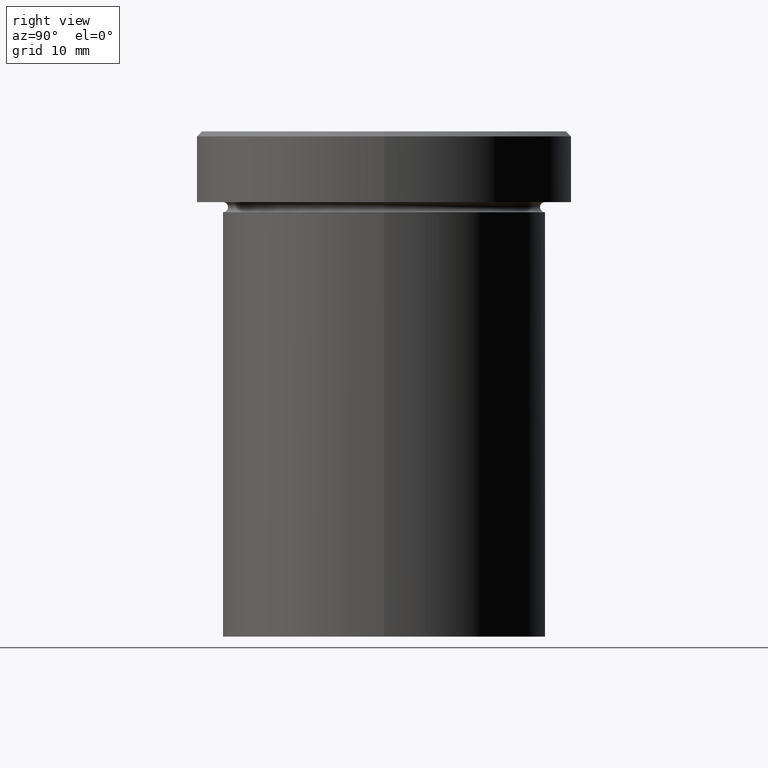
[diagram: clean part render]
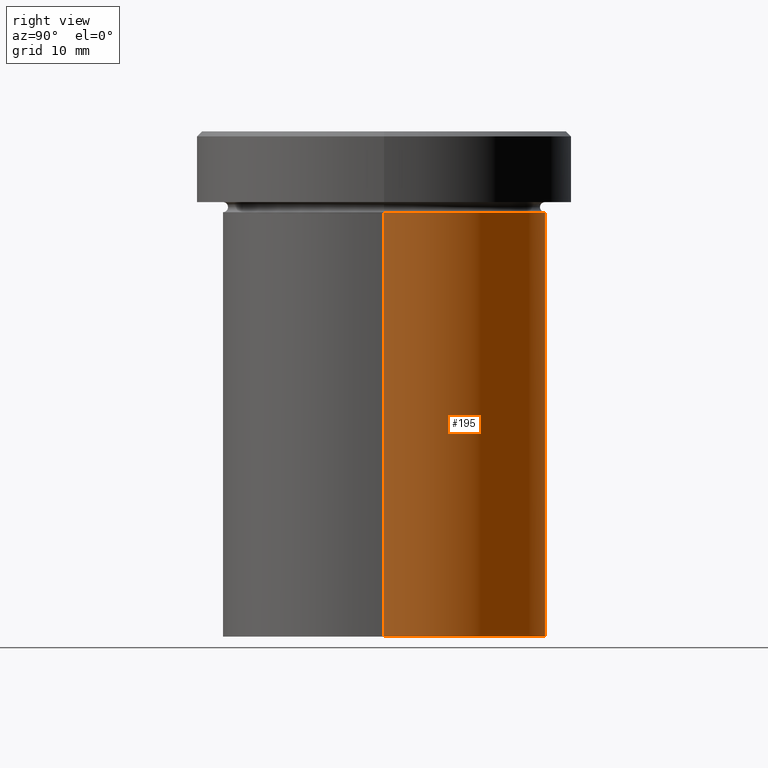
[diagram: same view with one face highlighted and labeled with its STEP entity id]
A machine part, right view. The second image highlights one B-rep face of the part: STEP entity #195.
In plain terms, the highlighted cylindrical surface (partial cylindrical patch) has radius 16 mm, axis along (-0, -0, 1).
Its self-contained STEP definition (entity closure, byte-faithful):
#22 = LINE ( 'NONE', #68, #272 ) ;
#39 = EDGE_LOOP ( 'NONE', ( #200, #76, #341, #165 ) ) ;
#50 = DIRECTION ( 'NONE',  ( -0.000000000000000000, -0.000000000000000000, 1.000000000000000000 ) ) ;
#65 = EDGE_CURVE ( 'NONE', #193, #268, #261, .T. ) ;
#68 = CARTESIAN_POINT ( 'NONE',  ( -16.00000000000000000, 1.959434878635765131E-15, 0.000000000000000000 ) ) ;
#76 = ORIENTED_EDGE ( 'NONE', *, *, #394, .T. ) ;
#94 = CARTESIAN_POINT ( 'NONE',  ( 16.00000000000000000, 0.000000000000000000, -50.00000000000000000 ) ) ;
#102 = EDGE_CURVE ( 'NONE', #268, #168, #353, .T. ) ;
#114 = CARTESIAN_POINT ( 'NONE',  ( -16.00000000000000000, 1.959434878635765131E-15, -8.000000000000000000 ) ) ;
#120 = DIRECTION ( 'NONE',  ( -0.000000000000000000, -0.000000000000000000, 1.000000000000000000 ) ) ;
#128 = CIRCLE ( 'NONE', #237, 16.00000000000000000 ) ;
#145 = DIRECTION ( 'NONE',  ( -0.000000000000000000, -0.000000000000000000, 1.000000000000000000 ) ) ;
#161 = AXIS2_PLACEMENT_3D ( 'NONE', #333, #50, #379 ) ;
#165 = ORIENTED_EDGE ( 'NONE', *, *, #65, .F. ) ;
#167 = VECTOR ( 'NONE', #177, 1000.000000000000000 ) ;
#168 = VERTEX_POINT ( 'NONE', #114 ) ;
#173 = CARTESIAN_POINT ( 'NONE',  ( -16.00000000000000000, 1.959434878635765131E-15, -50.00000000000000000 ) ) ;
#174 = CARTESIAN_POINT ( 'NONE',  ( 16.00000000000000000, 0.000000000000000000, 0.000000000000000000 ) ) ;
#177 = DIRECTION ( 'NONE',  ( -0.000000000000000000, -0.000000000000000000, 1.000000000000000000 ) ) ;
#185 = EDGE_CURVE ( 'NONE', #193, #371, #128, .T. ) ;
#187 = CYLINDRICAL_SURFACE ( 'NONE', #213, 16.00000000000000000 ) ;
#193 = VERTEX_POINT ( 'NONE', #94 ) ;
#195 = ADVANCED_FACE ( 'NONE', ( #351 ), #187, .T. ) ;
#198 = DIRECTION ( 'NONE',  ( -0.000000000000000000, -0.000000000000000000, 1.000000000000000000 ) ) ;
#200 = ORIENTED_EDGE ( 'NONE', *, *, #185, .T. ) ;
#201 = CARTESIAN_POINT ( 'NONE',  ( 16.00000000000000000, 0.000000000000000000, -8.000000000000000000 ) ) ;
#212 = DIRECTION ( 'NONE',  ( 1.000000000000000000, 0.000000000000000000, 0.000000000000000000 ) ) ;
#213 = AXIS2_PLACEMENT_3D ( 'NONE', #312, #145, #212 ) ;
#237 = AXIS2_PLACEMENT_3D ( 'NONE', #343, #120, #258 ) ;
#258 = DIRECTION ( 'NONE',  ( 1.000000000000000000, 0.000000000000000000, 0.000000000000000000 ) ) ;
#261 = LINE ( 'NONE', #174, #167 ) ;
#268 = VERTEX_POINT ( 'NONE', #201 ) ;
#272 = VECTOR ( 'NONE', #198, 1000.000000000000000 ) ;
#312 = CARTESIAN_POINT ( 'NONE',  ( 0.000000000000000000, 0.000000000000000000, 0.000000000000000000 ) ) ;
#333 = CARTESIAN_POINT ( 'NONE',  ( 0.000000000000000000, 0.000000000000000000, -8.000000000000000000 ) ) ;
#341 = ORIENTED_EDGE ( 'NONE', *, *, #102, .F. ) ;
#343 = CARTESIAN_POINT ( 'NONE',  ( 0.000000000000000000, 0.000000000000000000, -50.00000000000000000 ) ) ;
#351 = FACE_OUTER_BOUND ( 'NONE', #39, .T. ) ;
#353 = CIRCLE ( 'NONE', #161, 16.00000000000000000 ) ;
#371 = VERTEX_POINT ( 'NONE', #173 ) ;
#379 = DIRECTION ( 'NONE',  ( 1.000000000000000000, 0.000000000000000000, 0.000000000000000000 ) ) ;
#394 = EDGE_CURVE ( 'NONE', #371, #168, #22, .T. ) ;